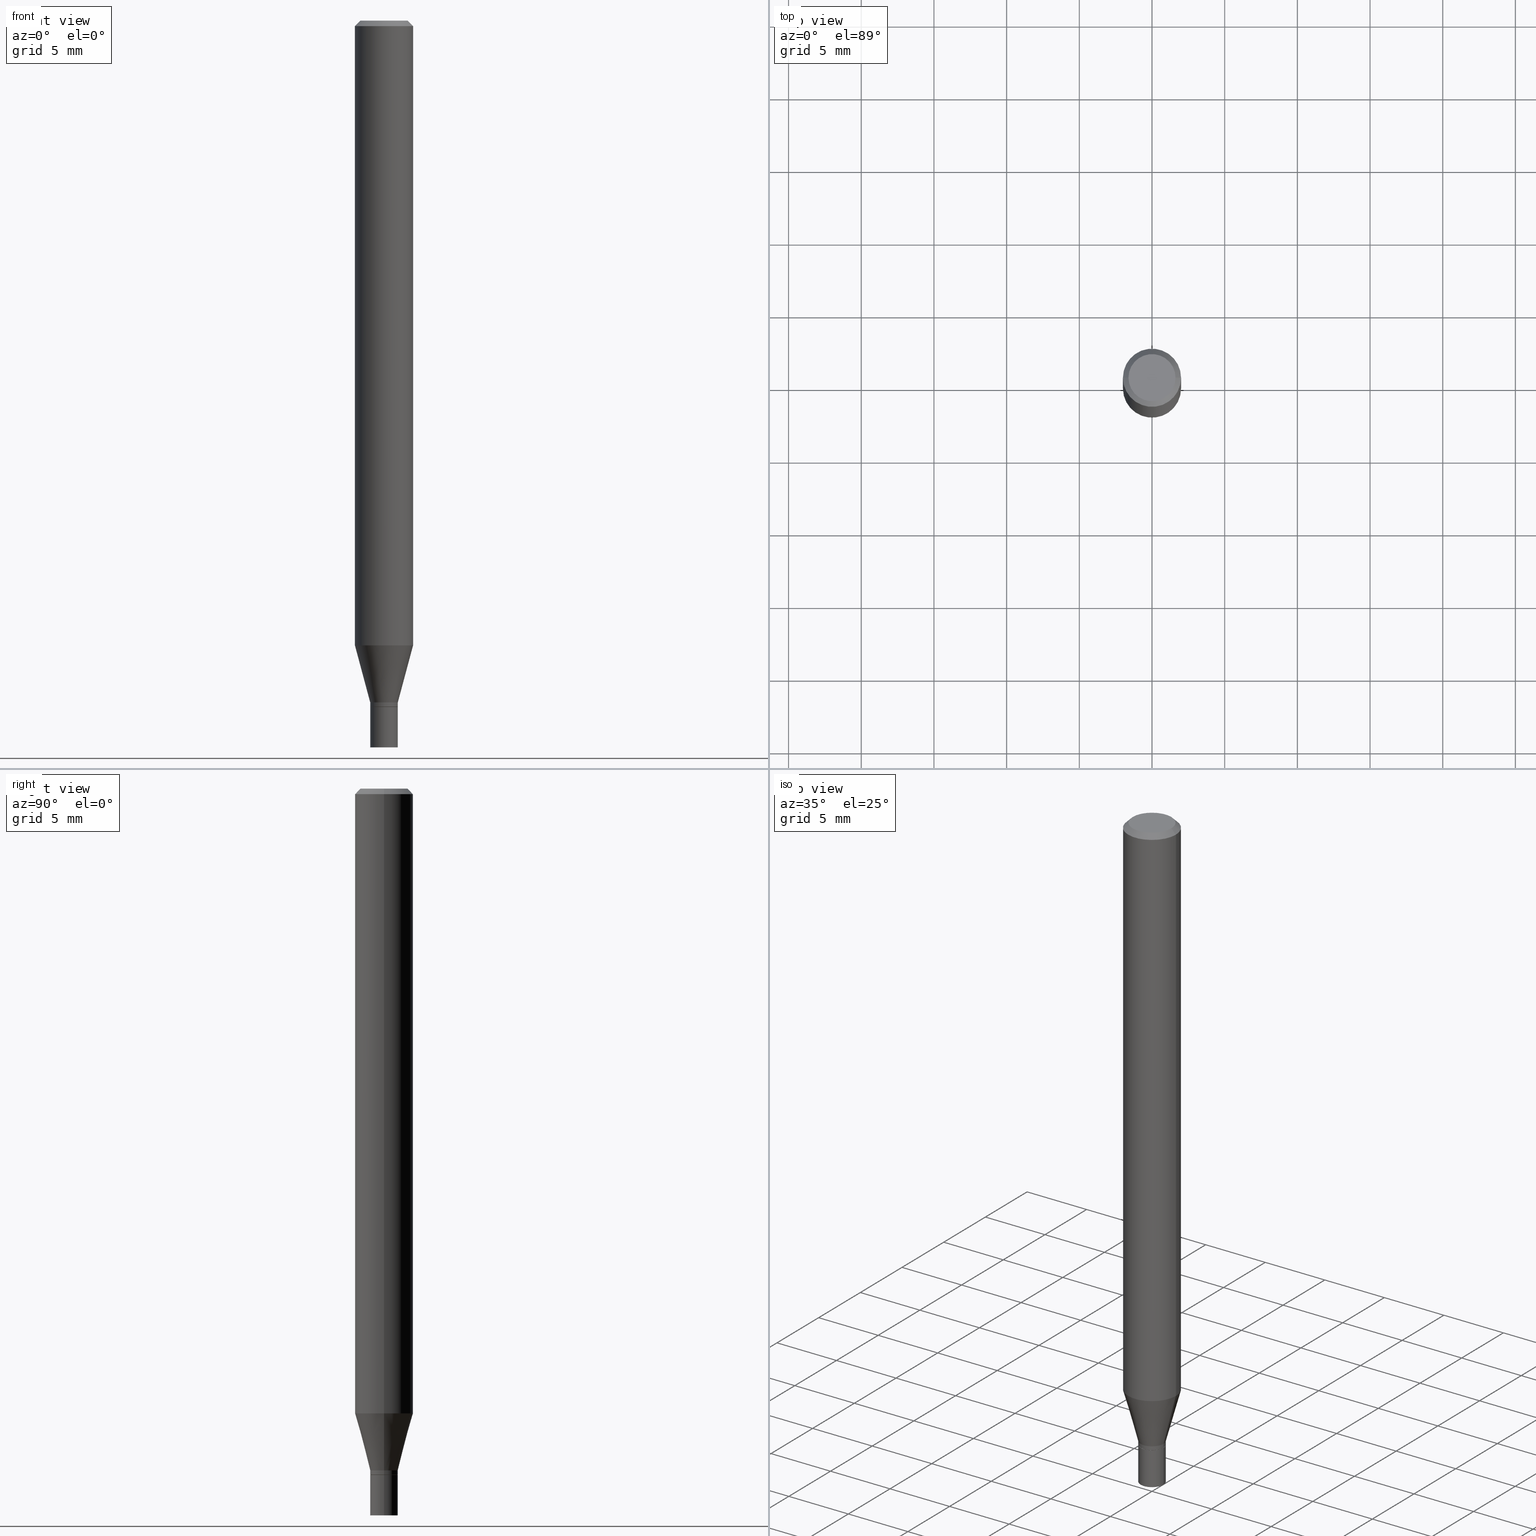
[diagram: canonical four-view strip — front | top / right | iso, engineering-drawing reading convention]
A machine part, canonical four-view strip (front | top / right | iso — engineering-drawing reading convention). The complete STEP part file that produces these views, byte-faithful:
ISO-10303-21;
HEADER;
FILE_DESCRIPTION (( 'STEP AP203' ),
    '1' );
FILE_NAME ('01870.STEP',
    '2024-03-20T02:13:11',
    ( '' ),
    ( '' ),
    'SwSTEP 2.0',
    'SolidWorks 2023',
    '' );
FILE_SCHEMA (( 'CONFIG_CONTROL_DESIGN' ));
ENDSEC;

DATA;
#1 = ORIENTED_EDGE ( 'NONE', *, *, #22, .F. ) ;
#2 = AXIS2_PLACEMENT_3D ( 'NONE', #31, #310, #28 ) ;
#3 = MECHANICAL_CONTEXT ( 'NONE', #285, 'mechanical' ) ;
#4 = DIRECTION ( 'NONE',  ( -2.445468806185136597E-29, 3.491481338843145583E-15, 1.000000000000000000 ) ) ;
#5 = CC_DESIGN_PERSON_AND_ORGANIZATION_ASSIGNMENT ( #386, #54, ( #293 ) ) ;
#6 = LINE ( 'NONE', #220, #442 ) ;
#7 = LOCAL_TIME ( 22, 13, 11.00000000000000000, #401 ) ;
#8 = EDGE_LOOP ( 'NONE', ( #405, #301, #333, #292 ) ) ;
#9 = CARTESIAN_POINT ( 'NONE',  ( -0.06375000000000000111, 4.713499807438222338E-16, -3.508777599725288588E-16 ) ) ;
#10 = EDGE_LOOP ( 'NONE', ( #145, #400, #256, #408 ) ) ;
#11 = DIRECTION ( 'NONE',  ( -2.445468806185136877E-29, 3.491481338843145188E-15, 1.000000000000000000 ) ) ;
#12 = VERTEX_POINT ( 'NONE', #352 ) ;
#13 = LENGTH_MEASURE_WITH_UNIT ( LENGTH_MEASURE( 0.02539999999999999897 ), #81 );
#14 = EDGE_LOOP ( 'NONE', ( #235, #451, #188, #127 ) ) ;
#15 = CARTESIAN_POINT ( 'NONE',  ( 3.668203209277705088E-31, -5.237222008264718399E-17, -0.01499999999999999944 ) ) ;
#16 = ORIENTED_EDGE ( 'NONE', *, *, #171, .T. ) ;
#17 = FACE_OUTER_BOUND ( 'NONE', #131, .T. ) ;
#18 = VECTOR ( 'NONE', #11, 39.37007874015748143 ) ;
#19 = LINE ( 'NONE', #273, #438 ) ;
#20 = LOCAL_TIME ( 22, 13, 11.00000000000000000, #346 ) ;
#21 = DATE_TIME_ROLE ( 'classification_date' ) ;
#22 = EDGE_CURVE ( 'NONE', #91, #448, #425, .T. ) ;
#23 = FACE_OUTER_BOUND ( 'NONE', #303, .T. ) ;
#24 = EDGE_LOOP ( 'NONE', ( #383, #430, #374, #193 ) ) ;
#25 = DIRECTION ( 'NONE',  ( -2.445468806185136597E-29, 3.491481338843145583E-15, 1.000000000000000000 ) ) ;
#26 = CARTESIAN_POINT ( 'NONE',  ( 0.07875000000000000056, -5.926364374071552647E-16, -0.01499999999999999944 ) ) ;
#27 = PERSON_AND_ORGANIZATION ( #198, #260 ) ;
#28 = DIRECTION ( 'NONE',  ( 1.000000000000000000, -6.982962677686266711E-15, 4.876176775795936353E-29 ) ) ;
#29 = AXIS2_PLACEMENT_3D ( 'NONE', #209, #392, #212 ) ;
#30 = APPROVAL ( #445, 'UNSPECIFIED' ) ;
#31 = CARTESIAN_POINT ( 'NONE',  ( 0.000000000000000000, 0.000000000000000000, 0.000000000000000000 ) ) ;
#32 =( CONVERSION_BASED_UNIT ( 'INCH', #13 ) LENGTH_UNIT ( ) NAMED_UNIT ( #244 ) );
#33 = CARTESIAN_POINT ( 'NONE',  ( -0.03740000000000000269, -6.414857410568197524E-15, -1.858300000000000063 ) ) ;
#34 = CARTESIAN_POINT ( 'NONE',  ( 4.544414682533838949E-29, -6.488219771972217332E-15, -1.858300000000000063 ) ) ;
#35 = AXIS2_PLACEMENT_3D ( 'NONE', #161, #232, #387 ) ;
#36 = EDGE_CURVE ( 'NONE', #166, #345, #337, .T. ) ;
#37 = DIRECTION ( 'NONE',  ( 1.000000000000000000, -6.982962677686274599E-15, 0.000000000000000000 ) ) ;
#38 = EDGE_CURVE ( 'NONE', #279, #251, #142, .T. ) ;
#39 = UNCERTAINTY_MEASURE_WITH_UNIT (LENGTH_MEASURE( 1.000000000000000082E-05 ), #32, 'distance_accuracy_value', 'NONE');
#40 = CONICAL_SURFACE ( 'NONE', #182, 0.03739999999999991942, 0.2617993877991501295 ) ;
#41 = LINE ( 'NONE', #441, #208 ) ;
#42 = ORIENTED_EDGE ( 'NONE', *, *, #103, .T. ) ;
#43 = DIRECTION ( 'NONE',  ( -2.445468806185136597E-29, 3.491481338843145583E-15, 1.000000000000000000 ) ) ;
#44 = EDGE_LOOP ( 'NONE', ( #147, #153, #202, #149 ) ) ;
#45 = APPROVAL_ROLE ( '' ) ;
#46 = EDGE_CURVE ( 'NONE', #388, #448, #249, .T. ) ;
#47 = EDGE_CURVE ( 'NONE', #251, #12, #422, .T. ) ;
#48 = ORIENTED_EDGE ( 'NONE', *, *, #257, .F. ) ;
#49 = FACE_OUTER_BOUND ( 'NONE', #8, .T. ) ;
#50 = ORIENTED_EDGE ( 'NONE', *, *, #156, .T. ) ;
#51 = DIRECTION ( 'NONE',  ( -2.445468806185136597E-29, 3.491481338843145583E-15, 1.000000000000000000 ) ) ;
#52 = CC_DESIGN_PERSON_AND_ORGANIZATION_ASSIGNMENT ( #205, #228, ( #359 ) ) ;
#53 = CARTESIAN_POINT ( 'NONE',  ( -0.03740000000000000269, -6.414857410568197524E-15, -1.968500000000000139 ) ) ;
#54 = PERSON_AND_ORGANIZATION_ROLE ( 'creator' ) ;
#55 = DIRECTION ( 'NONE',  ( 2.438088387897960049E-29, -3.491481338843145188E-15, -1.000000000000000000 ) ) ;
#56 = MANIFOLD_SOLID_BREP ( 'Body-Move/Copy2[2]', #111 ) ;
#57 = CIRCLE ( 'NONE', #240, 0.07875000000000000056 ) ;
#58 = DIRECTION ( 'NONE',  ( -2.445468806185136597E-29, 3.491481338843145583E-15, 1.000000000000000000 ) ) ;
#59 = LOCAL_TIME ( 22, 13, 11.00000000000000000, #311 ) ;
#60 = DIRECTION ( 'NONE',  ( 1.000000000000000000, -6.982962677686265922E-15, 4.852736867747365646E-29 ) ) ;
#61 = FACE_OUTER_BOUND ( 'NONE', #371, .T. ) ;
#62 = APPLICATION_PROTOCOL_DEFINITION ( 'international standard', 'config_control_design', 1994, #285 ) ;
#63 = DIRECTION ( 'NONE',  ( 1.000000000000000000, -6.982962677686261189E-15, 0.000000000000000000 ) ) ;
#64 = CARTESIAN_POINT ( 'NONE',  ( 4.515558150620855448E-29, -6.447020292173869059E-15, -1.846500000000000030 ) ) ;
#65 = DIRECTION ( 'NONE',  ( -0.7071067811865557884, 2.468850131082343835E-15, -0.7071067811865392461 ) ) ;
#66 = DIRECTION ( 'NONE',  ( 1.000000000000000000, -6.982962677686266711E-15, 4.876176775795935793E-29 ) ) ;
#67 = MANIFOLD_SOLID_BREP ( 'Body-Move/Copy2[1]', #299 ) ;
#68 = APPROVAL_STATUS ( 'not_yet_approved' ) ;
#69 = DIRECTION ( 'NONE',  ( -2.445468806185136597E-29, 3.491481338843145583E-15, 1.000000000000000000 ) ) ;
#70 = ADVANCED_FACE ( 'NONE', ( #61 ), #428, .F. ) ;
#71 = AXIS2_PLACEMENT_3D ( 'NONE', #343, #25, #315 ) ;
#72 = ORIENTED_EDGE ( 'NONE', *, *, #36, .T. ) ;
#73 = ORIENTED_EDGE ( 'NONE', *, *, #47, .T. ) ;
#74 = CONICAL_SURFACE ( 'NONE', #71, 0.03739999999999991942, 0.2617993877991501295 ) ;
#75 = DIRECTION ( 'NONE',  ( 1.000000000000000000, -6.982962677686265922E-15, 4.876176775795935232E-29 ) ) ;
#76 = VERTEX_POINT ( 'NONE', #316 ) ;
#77 = CARTESIAN_POINT ( 'NONE',  ( 0.03740000000000000269, -2.611628041454664002E-16, 1.823690114147680082E-30 ) ) ;
#78 = EDGE_LOOP ( 'NONE', ( #419, #16, #335, #227 ) ) ;
#79 = EDGE_CURVE ( 'NONE', #444, #229, #206, .T. ) ;
#80 = DATE_AND_TIME ( #298, #20 ) ;
#81 =( LENGTH_UNIT ( ) NAMED_UNIT ( * ) SI_UNIT ( $, .METRE. ) );
#82 = ORIENTED_EDGE ( 'NONE', *, *, #436, .F. ) ;
#83 = DIRECTION ( 'NONE',  ( -2.445468806185136597E-29, 3.491481338843145583E-15, 1.000000000000000000 ) ) ;
#84 = CIRCLE ( 'NONE', #29, 0.07875000000000000056 ) ;
#85 = AXIS2_PLACEMENT_3D ( 'NONE', #270, #384, #132 ) ;
#86 = CC_DESIGN_APPROVAL ( #30, ( #293 ) ) ;
#87 = VERTEX_POINT ( 'NONE', #53 ) ;
#88 = APPROVAL_ROLE ( '' ) ;
#89 = CYLINDRICAL_SURFACE ( 'NONE', #372, 0.03740000000000000269 ) ;
#90 = CC_DESIGN_PERSON_AND_ORGANIZATION_ASSIGNMENT ( #366, #395, ( #201 ) ) ;
#91 = VERTEX_POINT ( 'NONE', #460 ) ;
#92 = PERSON_AND_ORGANIZATION ( #198, #260 ) ;
#93 = DIRECTION ( 'NONE',  ( -2.445468806185136597E-29, 3.491481338843145583E-15, 1.000000000000000000 ) ) ;
#94 = DIRECTION ( 'NONE',  ( 1.000000000000000000, -6.982962677686266711E-15, 4.876176775795935793E-29 ) ) ;
#95 = AXIS2_PLACEMENT_3D ( 'NONE', #133, #175, #172 ) ;
#96 = CARTESIAN_POINT ( 'NONE',  ( 4.544414682533838949E-29, -6.488219771972217332E-15, -1.858300000000000063 ) ) ;
#97 = CC_DESIGN_SECURITY_CLASSIFICATION ( #359, ( #293 ) ) ;
#98 = CARTESIAN_POINT ( 'NONE',  ( 0.07875000000000000056, -5.499083108677934443E-16, 3.839989210939299016E-30 ) ) ;
#99 = ORIENTED_EDGE ( 'NONE', *, *, #156, .F. ) ;
#100 = APPLICATION_PROTOCOL_DEFINITION ( 'international standard', 'config_control_design', 1994, #115 ) ;
#101 = DIRECTION ( 'NONE',  ( 1.000000000000000000, -6.982962677686265922E-15, 0.000000000000000000 ) ) ;
#102 = DATE_AND_TIME ( #431, #223 ) ;
#103 = EDGE_CURVE ( 'NONE', #342, #448, #204, .T. ) ;
#104 = DIRECTION ( 'NONE',  ( 1.000000000000000000, -6.982962677686266711E-15, 4.876176775795936353E-29 ) ) ;
#105 = DATE_TIME_ROLE ( 'creation_date' ) ;
#106 = LINE ( 'NONE', #261, #381 ) ;
#107 = EDGE_CURVE ( 'NONE', #76, #91, #19, .T. ) ;
#108 = DESIGN_CONTEXT ( 'detailed design', #115, 'design' ) ;
#109 = CARTESIAN_POINT ( 'NONE',  ( 0.000000000000000000, 0.000000000000000000, 0.000000000000000000 ) ) ;
#110 = ORIENTED_EDGE ( 'NONE', *, *, #307, .F. ) ;
#111 = CLOSED_SHELL ( 'NONE', ( #275, #452, #344, #318, #365, #304, #356, #429, #323, #70, #432, #128 ) ) ;
#112 = EDGE_CURVE ( 'NONE', #76, #388, #117, .T. ) ;
#113 = CIRCLE ( 'NONE', #95, 0.06375000000000000111 ) ;
#114 = EDGE_CURVE ( 'NONE', #388, #76, #84, .T. ) ;
#115 = APPLICATION_CONTEXT ( 'configuration controlled 3d designs of mechanical parts and assemblies' ) ;
#116 = EDGE_LOOP ( 'NONE', ( #99, #418, #73, #393 ) ) ;
#117 = CIRCLE ( 'NONE', #379, 0.07875000000000000056 ) ;
#118 = CIRCLE ( 'NONE', #164, 0.03739999999999992636 ) ;
#119 = DIRECTION ( 'NONE',  ( 1.000000000000000000, -6.982962677686264344E-15, 0.000000000000000000 ) ) ;
#120 = CC_DESIGN_APPROVAL ( #294, ( #201 ) ) ;
#121 = ORIENTED_EDGE ( 'NONE', *, *, #421, .F. ) ;
#122 = APPROVAL_DATE_TIME ( #80, #30 ) ;
#123 = DIRECTION ( 'NONE',  ( 2.438088387897960049E-29, -3.491481338843145188E-15, -1.000000000000000000 ) ) ;
#124 = VERTEX_POINT ( 'NONE', #354 ) ;
#125 = DATE_AND_TIME ( #349, #286 ) ;
#126 = DIRECTION ( 'NONE',  ( -1.000000000000000000, 6.982962677686265922E-15, -4.876176775795935793E-29 ) ) ;
#127 = ORIENTED_EDGE ( 'NONE', *, *, #36, .F. ) ;
#128 = ADVANCED_FACE ( 'NONE', ( #215 ), #360, .T. ) ;
#129 = DIRECTION ( 'NONE',  ( 2.445468806185136597E-29, -3.491481338843145583E-15, -1.000000000000000000 ) ) ;
#130 = AXIS2_PLACEMENT_3D ( 'NONE', #420, #129, #351 ) ;
#131 = EDGE_LOOP ( 'NONE', ( #306, #50, #258, #233 ) ) ;
#132 = DIRECTION ( 'NONE',  ( 1.000000000000000000, -6.982962677686261189E-15, 0.000000000000000000 ) ) ;
#133 = CARTESIAN_POINT ( 'NONE',  ( 8.580606167969272650E-45, -1.225083151159157695E-30, -3.508777599725256540E-16 ) ) ;
#134 = FACE_OUTER_BOUND ( 'NONE', #454, .T. ) ;
#135 = CARTESIAN_POINT ( 'NONE',  ( 3.668203209277705088E-31, -5.237222008264718399E-17, -0.01499999999999999944 ) ) ;
#136 = CIRCLE ( 'NONE', #196, 0.03739999999999992636 ) ;
#137 = CARTESIAN_POINT ( 'NONE',  ( 0.000000000000000000, 0.000000000000000000, 0.000000000000000000 ) ) ;
#138 = ORIENTED_EDGE ( 'NONE', *, *, #281, .F. ) ;
#139 = DIRECTION ( 'NONE',  ( -2.445468806185136597E-29, 3.491481338843145583E-15, 1.000000000000000000 ) ) ;
#140 = EDGE_CURVE ( 'NONE', #183, #342, #113, .T. ) ;
#141 = CARTESIAN_POINT ( 'NONE',  ( 4.813905344975441835E-29, -6.872981015512731707E-15, -1.968500000000000139 ) ) ;
#142 = CIRCLE ( 'NONE', #369, 0.03690000000000000224 ) ;
#143 = DIRECTION ( 'NONE',  ( -0.7071067811865656694, 7.493145998870420424E-15, 0.7071067811865294761 ) ) ;
#144 = FACE_OUTER_BOUND ( 'NONE', #10, .T. ) ;
#145 = ORIENTED_EDGE ( 'NONE', *, *, #114, .T. ) ;
#146 = ADVANCED_FACE ( 'NONE', ( #319 ), #243, .T. ) ;
#147 = ORIENTED_EDGE ( 'NONE', *, *, #150, .F. ) ;
#148 = PRODUCT_DEFINITION_SHAPE ( 'NONE', 'NONE',  #201 ) ;
#149 = ORIENTED_EDGE ( 'NONE', *, *, #112, .F. ) ;
#150 = EDGE_CURVE ( 'NONE', #229, #76, #300, .T. ) ;
#151 = APPROVAL ( #377, 'UNSPECIFIED' ) ;
#152 = CARTESIAN_POINT ( 'NONE',  ( -0.03739999999999991942, -6.181277308999592458E-15, -1.846500000000000030 ) ) ;
#153 = ORIENTED_EDGE ( 'NONE', *, *, #328, .T. ) ;
#154 = CIRCLE ( 'NONE', #174, 0.03690000000000000224 ) ;
#155 = LINE ( 'NONE', #409, #367 ) ;
#156 = EDGE_CURVE ( 'NONE', #279, #124, #218, .T. ) ;
#157 = ORIENTED_EDGE ( 'NONE', *, *, #397, .T. ) ;
#158 = CARTESIAN_POINT ( 'NONE',  ( 4.515558150620855448E-29, -6.447020292173869059E-15, -1.846500000000000030 ) ) ;
#159 = ORIENTED_EDGE ( 'NONE', *, *, #79, .F. ) ;
#160 = DATE_AND_TIME ( #194, #59 ) ;
#161 = CARTESIAN_POINT ( 'NONE',  ( 0.000000000000000000, 0.000000000000000000, 0.000000000000000000 ) ) ;
#162 = ORIENTED_EDGE ( 'NONE', *, *, #140, .T. ) ;
#163 = CARTESIAN_POINT ( 'NONE',  ( 0.03740000000000000269, -6.749382576117683733E-15, -1.858300000000000063 ) ) ;
#164 = AXIS2_PLACEMENT_3D ( 'NONE', #296, #334, #119 ) ;
#165 =( GEOMETRIC_REPRESENTATION_CONTEXT ( 3 ) GLOBAL_UNCERTAINTY_ASSIGNED_CONTEXT ( ( #39 ) ) GLOBAL_UNIT_ASSIGNED_CONTEXT ( ( #32, #242, #355 ) ) REPRESENTATION_CONTEXT ( 'NONE', 'WORKASPACE' ) );
#166 = VERTEX_POINT ( 'NONE', #33 ) ;
#167 = PERSON_AND_ORGANIZATION ( #198, #260 ) ;
#168 = CARTESIAN_POINT ( 'NONE',  ( 0.07875000000000000056, -6.458122152269187303E-15, -1.692179699107027258 ) ) ;
#169 = DIRECTION ( 'NONE',  ( 1.000000000000000000, -6.982962677686274599E-15, 0.000000000000000000 ) ) ;
#170 = DIRECTION ( 'NONE',  ( -2.445468806185136597E-29, 3.491481338843145583E-15, 1.000000000000000000 ) ) ;
#171 = EDGE_CURVE ( 'NONE', #124, #12, #118, .T. ) ;
#172 = DIRECTION ( 'NONE',  ( 1.000000000000000000, -6.982962677686265922E-15, 4.852736867747365646E-29 ) ) ;
#173 = VECTOR ( 'NONE', #245, 39.37007874015748143 ) ;
#174 = AXIS2_PLACEMENT_3D ( 'NONE', #34, #433, #398 ) ;
#175 = DIRECTION ( 'NONE',  ( -2.445468806185136597E-29, 3.491481338843145583E-15, 1.000000000000000000 ) ) ;
#176 = ADVANCED_BREP_SHAPE_REPRESENTATION ( '01870', ( #67, #56, #390 ), #165 ) ;
#177 = CARTESIAN_POINT ( 'NONE',  ( 4.138172668625985429E-29, -5.908213841401393958E-15, -1.692179699107027258 ) ) ;
#178 = EDGE_CURVE ( 'NONE', #413, #345, #185, .T. ) ;
#179 = CARTESIAN_POINT ( 'NONE',  ( 0.000000000000000000, 0.000000000000000000, 0.000000000000000000 ) ) ;
#180 = APPROVAL_ROLE ( '' ) ;
#181 = DIRECTION ( 'NONE',  ( -2.445468806185136877E-29, 3.491481338843145188E-15, 1.000000000000000000 ) ) ;
#182 = AXIS2_PLACEMENT_3D ( 'NONE', #399, #4, #252 ) ;
#183 = VERTEX_POINT ( 'NONE', #9 ) ;
#184 = APPROVAL_PERSON_ORGANIZATION ( #284, #294, #180 ) ;
#185 = LINE ( 'NONE', #77, #18 ) ;
#186 = EDGE_CURVE ( 'NONE', #124, #229, #155, .T. ) ;
#187 = CIRCLE ( 'NONE', #416, 0.03740000000000000269 ) ;
#188 = ORIENTED_EDGE ( 'NONE', *, *, #178, .T. ) ;
#189 = CARTESIAN_POINT ( 'NONE',  ( -0.07875000000000000056, 4.975360907851462665E-16, -0.01499999999999999944 ) ) ;
#190 = ORIENTED_EDGE ( 'NONE', *, *, #231, .F. ) ;
#191 = EDGE_CURVE ( 'NONE', #87, #166, #106, .T. ) ;
#192 = DIRECTION ( 'NONE',  ( -2.445468806185136597E-29, 3.491481338843145583E-15, 1.000000000000000000 ) ) ;
#193 = ORIENTED_EDGE ( 'NONE', *, *, #225, .F. ) ;
#194 = CALENDAR_DATE ( 2024, 19, 3 ) ;
#195 = VECTOR ( 'NONE', #283, 39.37007874015748143 ) ;
#196 = AXIS2_PLACEMENT_3D ( 'NONE', #302, #170, #458 ) ;
#197 = DIRECTION ( 'NONE',  ( -2.445468806185136597E-29, 3.491481338843145583E-15, 1.000000000000000000 ) ) ;
#198 = PERSON ( 'UNSPECIFIED', 'UNSPECIFIED', 'UNSPECIFIED', ('UNSPECIFIED'), ('UNSPECIFIED'), ('UNSPECIFIED') ) ;
#199 = ORIENTED_EDGE ( 'NONE', *, *, #38, .F. ) ;
#200 = CARTESIAN_POINT ( 'NONE',  ( 4.848906058769445083E-29, -6.822858001242805551E-15, -1.968500000000000139 ) ) ;
#201 = PRODUCT_DEFINITION ( 'UNKNOWN', '', #293, #108 ) ;
#202 = ORIENTED_EDGE ( 'NONE', *, *, #225, .T. ) ;
#203 = CARTESIAN_POINT ( 'NONE',  ( 0.07875000000000000056, -6.022805309504406221E-16, -0.01499999999999999944 ) ) ;
#204 = LINE ( 'NONE', #26, #463 ) ;
#205 = PERSON_AND_ORGANIZATION ( #198, #260 ) ;
#206 = CIRCLE ( 'NONE', #325, 0.03739999999999991942 ) ;
#207 = DIRECTION ( 'NONE',  ( -1.000000000000000000, 6.982962677686265922E-15, 0.000000000000000000 ) ) ;
#208 = VECTOR ( 'NONE', #329, 39.37007874015747433 ) ;
#209 = CARTESIAN_POINT ( 'NONE',  ( 4.138172668625985429E-29, -5.908213841401393958E-15, -1.692179699107027258 ) ) ;
#210 = ADVANCED_FACE ( 'NONE', ( #289 ), #287, .F. ) ;
#211 = DIRECTION ( 'NONE',  ( 2.445468806185136597E-29, -3.491481338843145583E-15, -1.000000000000000000 ) ) ;
#212 = DIRECTION ( 'NONE',  ( 1.000000000000000000, -6.982962677686261977E-15, 0.000000000000000000 ) ) ;
#213 = CARTESIAN_POINT ( 'NONE',  ( 0.03690000000000000224, -6.745891094778840725E-15, -1.858300000000000063 ) ) ;
#214 = AXIS2_PLACEMENT_3D ( 'NONE', #378, #417, #60 ) ;
#215 = FACE_OUTER_BOUND ( 'NONE', #78, .T. ) ;
#216 = FACE_OUTER_BOUND ( 'NONE', #268, .T. ) ;
#217 = CARTESIAN_POINT ( 'NONE',  ( 0.000000000000000000, 0.000000000000000000, 0.000000000000000000 ) ) ;
#218 = LINE ( 'NONE', #446, #326 ) ;
#219 = CALENDAR_DATE ( 2024, 19, 3 ) ;
#220 = CARTESIAN_POINT ( 'NONE',  ( 0.03739999999999991942, -2.611628041454658086E-16, 1.823690114147676228E-30 ) ) ;
#221 = AXIS2_PLACEMENT_3D ( 'NONE', #158, #197, #353 ) ;
#222 = CONICAL_SURFACE ( 'NONE', #350, 0.03690000000000000224, 0.7853981633974739252 ) ;
#223 = LOCAL_TIME ( 22, 13, 11.00000000000000000, #361 ) ;
#224 = FACE_OUTER_BOUND ( 'NONE', #380, .T. ) ;
#225 = EDGE_CURVE ( 'NONE', #444, #388, #41, .T. ) ;
#226 = CARTESIAN_POINT ( 'NONE',  ( 0.03690000000000000224, -6.745891094778840725E-15, -1.858300000000000063 ) ) ;
#227 = ORIENTED_EDGE ( 'NONE', *, *, #328, .F. ) ;
#228 = PERSON_AND_ORGANIZATION_ROLE ( 'classification_officer' ) ;
#229 = VERTEX_POINT ( 'NONE', #288 ) ;
#230 = AXIS2_PLACEMENT_3D ( 'NONE', #141, #192, #250 ) ;
#231 = EDGE_CURVE ( 'NONE', #251, #279, #154, .T. ) ;
#232 = DIRECTION ( 'NONE',  ( -2.445468806185136597E-29, 3.491481338843145583E-15, 1.000000000000000000 ) ) ;
#233 = ORIENTED_EDGE ( 'NONE', *, *, #47, .F. ) ;
#234 = CARTESIAN_POINT ( 'NONE',  ( 0.000000000000000000, 0.000000000000000000, 0.000000000000000000 ) ) ;
#235 = ORIENTED_EDGE ( 'NONE', *, *, #191, .F. ) ;
#236 = DIRECTION ( 'NONE',  ( 1.000000000000000000, -6.982962677686265922E-15, 0.000000000000000000 ) ) ;
#237 = CC_DESIGN_DATE_AND_TIME_ASSIGNMENT ( #125, #21, ( #359 ) ) ;
#238 = DIRECTION ( 'NONE',  ( -2.445468806185136597E-29, 3.491481338843145583E-15, 1.000000000000000000 ) ) ;
#239 = FACE_OUTER_BOUND ( 'NONE', #410, .T. ) ;
#240 = AXIS2_PLACEMENT_3D ( 'NONE', #15, #83, #236 ) ;
#241 = DIRECTION ( 'NONE',  ( -2.445468806185136877E-29, 3.491481338843145188E-15, 1.000000000000000000 ) ) ;
#242 =( NAMED_UNIT ( * ) PLANE_ANGLE_UNIT ( ) SI_UNIT ( $, .RADIAN. ) );
#243 = CYLINDRICAL_SURFACE ( 'NONE', #439, 0.03740000000000000269 ) ;
#244 = DIMENSIONAL_EXPONENTS ( 1.000000000000000000, 0.000000000000000000, 0.000000000000000000, 0.000000000000000000, 0.000000000000000000, 0.000000000000000000, 0.000000000000000000 ) ;
#245 = DIRECTION ( 'NONE',  ( 0.7071067811865656694, -2.468850131082446387E-15, 0.7071067811865294761 ) ) ;
#246 = APPROVAL_DATE_TIME ( #427, #294 ) ;
#247 = CC_DESIGN_DATE_AND_TIME_ASSIGNMENT ( #102, #105, ( #201 ) ) ;
#248 = CIRCLE ( 'NONE', #230, 0.03740000000000000269 ) ;
#249 = LINE ( 'NONE', #98, #195 ) ;
#250 = DIRECTION ( 'NONE',  ( 1.000000000000000000, -6.982962677686274599E-15, 0.000000000000000000 ) ) ;
#251 = VERTEX_POINT ( 'NONE', #226 ) ;
#252 = DIRECTION ( 'NONE',  ( 1.000000000000000000, -6.982962677686265133E-15, 0.000000000000000000 ) ) ;
#253 = DIRECTION ( 'NONE',  ( -2.445468806185136597E-29, 3.491481338843145583E-15, 1.000000000000000000 ) ) ;
#254 = PRODUCT ( '01870', '01870', '', ( #3 ) ) ;
#255 = VECTOR ( 'NONE', #434, 39.37007874015747433 ) ;
#256 = ORIENTED_EDGE ( 'NONE', *, *, #331, .F. ) ;
#257 = EDGE_CURVE ( 'NONE', #183, #91, #375, .T. ) ;
#258 = ORIENTED_EDGE ( 'NONE', *, *, #397, .F. ) ;
#259 = VECTOR ( 'NONE', #65, 39.37007874015748143 ) ;
#260 = ORGANIZATION ( 'UNSPECIFIED', 'UNSPECIFIED', '' ) ;
#261 = CARTESIAN_POINT ( 'NONE',  ( -0.03740000000000000269, 2.657429831742774886E-16, -1.839681723755335040E-30 ) ) ;
#262 = ORIENTED_EDGE ( 'NONE', *, *, #178, .F. ) ;
#263 = PERSON_AND_ORGANIZATION ( #198, #260 ) ;
#264 = FACE_OUTER_BOUND ( 'NONE', #116, .T. ) ;
#265 = ORIENTED_EDGE ( 'NONE', *, *, #436, .T. ) ;
#266 = SECURITY_CLASSIFICATION_LEVEL ( 'unclassified' ) ;
#267 = CYLINDRICAL_SURFACE ( 'NONE', #35, 0.07875000000000000056 ) ;
#268 = EDGE_LOOP ( 'NONE', ( #157, #295, #159, #440 ) ) ;
#269 = AXIS2_PLACEMENT_3D ( 'NONE', #461, #347, #382 ) ;
#270 = CARTESIAN_POINT ( 'NONE',  ( 4.544414682533838949E-29, -6.488219771972217332E-15, -1.858300000000000063 ) ) ;
#271 = ORIENTED_EDGE ( 'NONE', *, *, #46, .T. ) ;
#272 = DIRECTION ( 'NONE',  ( -2.445468806185136597E-29, 3.491481338843145583E-15, 1.000000000000000000 ) ) ;
#273 = CARTESIAN_POINT ( 'NONE',  ( -0.07875000000000000056, 5.595524044110789003E-16, -3.873661383575737792E-30 ) ) ;
#274 = CARTESIAN_POINT ( 'NONE',  ( 0.06375000000000000111, -5.149965923825457196E-16, -3.508777599725223014E-16 ) ) ;
#275 = ADVANCED_FACE ( 'NONE', ( #216 ), #362, .T. ) ;
#276 = DIRECTION ( 'NONE',  ( 0.7071067811865557884, -7.319954787623282867E-15, -0.7071067811865392461 ) ) ;
#277 = CONICAL_SURFACE ( 'NONE', #308, 0.07875000000000000056, 0.7853981633974600474 ) ;
#278 = APPROVAL_PERSON_ORGANIZATION ( #167, #151, #45 ) ;
#279 = VERTEX_POINT ( 'NONE', #466 ) ;
#280 = CARTESIAN_POINT ( 'NONE',  ( 4.544414682533838949E-29, -6.488219771972217332E-15, -1.858300000000000063 ) ) ;
#281 = EDGE_CURVE ( 'NONE', #413, #87, #248, .T. ) ;
#282 = PERSON_AND_ORGANIZATION_ROLE ( 'design_owner' ) ;
#283 = DIRECTION ( 'NONE',  ( -2.445468806185136877E-29, 3.491481338843145188E-15, 1.000000000000000000 ) ) ;
#284 = PERSON_AND_ORGANIZATION ( #198, #260 ) ;
#285 = APPLICATION_CONTEXT ( 'configuration controlled 3d designs of mechanical parts and assemblies' ) ;
#286 = LOCAL_TIME ( 22, 13, 11.00000000000000000, #449 ) ;
#287 = PLANE ( 'NONE',  #389 ) ;
#288 = CARTESIAN_POINT ( 'NONE',  ( -0.03739999999999991942, -5.764969372994953413E-15, -1.846500000000000030 ) ) ;
#289 = FACE_OUTER_BOUND ( 'NONE', #297, .T. ) ;
#290 = AXIS2_PLACEMENT_3D ( 'NONE', #96, #314, #426 ) ;
#291 = CONICAL_SURFACE ( 'NONE', #85, 0.03690000000000000224, 0.7853981633974739252 ) ;
#292 = ORIENTED_EDGE ( 'NONE', *, *, #22, .T. ) ;
#293 = PRODUCT_DEFINITION_FORMATION_WITH_SPECIFIED_SOURCE ( 'ANY', '', #254, .NOT_KNOWN. ) ;
#294 = APPROVAL ( #68, 'UNSPECIFIED' ) ;
#295 = ORIENTED_EDGE ( 'NONE', *, *, #186, .T. ) ;
#296 = CARTESIAN_POINT ( 'NONE',  ( 4.543191948130747268E-29, -6.486474031302795829E-15, -1.857800000000000118 ) ) ;
#297 = EDGE_LOOP ( 'NONE', ( #338, #72 ) ) ;
#298 = CALENDAR_DATE ( 2024, 19, 3 ) ;
#299 = CLOSED_SHELL ( 'NONE', ( #447, #370, #146, #210 ) ) ;
#300 = LINE ( 'NONE', #152, #255 ) ;
#301 = ORIENTED_EDGE ( 'NONE', *, *, #140, .F. ) ;
#302 = CARTESIAN_POINT ( 'NONE',  ( 4.543191948130747268E-29, -6.486474031302795829E-15, -1.857800000000000118 ) ) ;
#303 = EDGE_LOOP ( 'NONE', ( #415, #385, #271, #1 ) ) ;
#304 = ADVANCED_FACE ( 'NONE', ( #404 ), #40, .T. ) ;
#305 = PLANE ( 'NONE',  #317 ) ;
#306 = ORIENTED_EDGE ( 'NONE', *, *, #231, .T. ) ;
#307 = EDGE_CURVE ( 'NONE', #345, #166, #187, .T. ) ;
#308 = AXIS2_PLACEMENT_3D ( 'NONE', #391, #211, #207 ) ;
#309 = CARTESIAN_POINT ( 'NONE',  ( 0.03739999999999991942, -6.708183096319334671E-15, -1.846500000000000030 ) ) ;
#310 = DIRECTION ( 'NONE',  ( -2.445468806185136597E-29, 3.491481338843145583E-15, 1.000000000000000000 ) ) ;
#311 = COORDINATED_UNIVERSAL_TIME_OFFSET ( 5, 0, .BEHIND. ) ;
#312 = EDGE_CURVE ( 'NONE', #12, #444, #6, .T. ) ;
#313 = DIRECTION ( 'NONE',  ( -2.438088387897960049E-29, 3.491481338843145188E-15, 1.000000000000000000 ) ) ;
#314 = DIRECTION ( 'NONE',  ( -2.438088387897960049E-29, 3.491481338843145188E-15, 1.000000000000000000 ) ) ;
#315 = DIRECTION ( 'NONE',  ( 1.000000000000000000, -6.982962677686265133E-15, 0.000000000000000000 ) ) ;
#316 = CARTESIAN_POINT ( 'NONE',  ( -0.07875000000000000056, -5.348661436990315945E-15, -1.692179699107027258 ) ) ;
#317 = AXIS2_PLACEMENT_3D ( 'NONE', #200, #313, #450 ) ;
#318 = ADVANCED_FACE ( 'NONE', ( #144 ), #435, .T. ) ;
#319 = FACE_OUTER_BOUND ( 'NONE', #14, .T. ) ;
#320 = DIRECTION ( 'NONE',  ( 1.000000000000000000, 0.000000000000000000, 0.000000000000000000 ) ) ;
#321 = DIRECTION ( 'NONE',  ( -2.445468806185136597E-29, 3.491481338843145583E-15, 1.000000000000000000 ) ) ;
#322 = CARTESIAN_POINT ( 'NONE',  ( 2.611628041455117597E-16, 0.03739999999999351482, -1.858300000000000063 ) ) ;
#323 = ADVANCED_FACE ( 'NONE', ( #224 ), #336, .F. ) ;
#324 = DIRECTION ( 'NONE',  ( 0.000000000000000000, 0.000000000000000000, 1.000000000000000000 ) ) ;
#325 = AXIS2_PLACEMENT_3D ( 'NONE', #64, #238, #357 ) ;
#326 = VECTOR ( 'NONE', #143, 39.37007874015748143 ) ;
#327 = DIRECTION ( 'NONE',  ( -2.445468806185136877E-29, 3.491481338843145188E-15, 1.000000000000000000 ) ) ;
#328 = EDGE_CURVE ( 'NONE', #229, #444, #396, .T. ) ;
#329 = DIRECTION ( 'NONE',  ( 0.2588190451025214611, 1.565188264969621573E-15, 0.9659258262890682012 ) ) ;
#330 = CONICAL_SURFACE ( 'NONE', #130, 0.07875000000000000056, 0.7853981633974600474 ) ;
#331 = EDGE_CURVE ( 'NONE', #448, #91, #57, .T. ) ;
#332 = APPROVAL_PERSON_ORGANIZATION ( #92, #30, #88 ) ;
#333 = ORIENTED_EDGE ( 'NONE', *, *, #257, .T. ) ;
#334 = DIRECTION ( 'NONE',  ( -2.445468806185136597E-29, 3.491481338843145583E-15, 1.000000000000000000 ) ) ;
#335 = ORIENTED_EDGE ( 'NONE', *, *, #312, .T. ) ;
#336 = PLANE ( 'NONE',  #339 ) ;
#337 = CIRCLE ( 'NONE', #403, 0.03740000000000000269 ) ;
#338 = ORIENTED_EDGE ( 'NONE', *, *, #307, .T. ) ;
#339 = AXIS2_PLACEMENT_3D ( 'NONE', #373, #55, #126 ) ;
#340 = APPROVAL_DATE_TIME ( #160, #151 ) ;
#341 = FACE_OUTER_BOUND ( 'NONE', #24, .T. ) ;
#342 = VERTEX_POINT ( 'NONE', #274 ) ;
#343 = CARTESIAN_POINT ( 'NONE',  ( 4.515558150620855448E-29, -6.447020292173869059E-15, -1.846500000000000030 ) ) ;
#344 = ADVANCED_FACE ( 'NONE', ( #239 ), #277, .T. ) ;
#345 = VERTEX_POINT ( 'NONE', #163 ) ;
#346 = COORDINATED_UNIVERSAL_TIME_OFFSET ( 5, 0, .BEHIND. ) ;
#347 = DIRECTION ( 'NONE',  ( -2.445468806185136597E-29, 3.491481338843145583E-15, 1.000000000000000000 ) ) ;
#348 = DIRECTION ( 'NONE',  ( -2.445468806185136597E-29, 3.491481338843145583E-15, 1.000000000000000000 ) ) ;
#349 = CALENDAR_DATE ( 2024, 19, 3 ) ;
#350 = AXIS2_PLACEMENT_3D ( 'NONE', #455, #272, #412 ) ;
#351 = DIRECTION ( 'NONE',  ( -1.000000000000000000, 6.982962677686265922E-15, 0.000000000000000000 ) ) ;
#352 = CARTESIAN_POINT ( 'NONE',  ( 0.03739999999999992636, -6.747636835448261440E-15, -1.857800000000000118 ) ) ;
#353 = DIRECTION ( 'NONE',  ( 1.000000000000000000, -6.982962677686265133E-15, 0.000000000000000000 ) ) ;
#354 = CARTESIAN_POINT ( 'NONE',  ( -0.03739999999999992636, -6.220731048128519228E-15, -1.857800000000000118 ) ) ;
#355 =( NAMED_UNIT ( * ) SI_UNIT ( $, .STERADIAN. ) SOLID_ANGLE_UNIT ( ) );
#356 = ADVANCED_FACE ( 'NONE', ( #23 ), #267, .T. ) ;
#357 = DIRECTION ( 'NONE',  ( 1.000000000000000000, -6.982962677686265133E-15, 0.000000000000000000 ) ) ;
#358 = CIRCLE ( 'NONE', #214, 0.06375000000000000111 ) ;
#359 = SECURITY_CLASSIFICATION ( '', '', #266 ) ;
#360 = CYLINDRICAL_SURFACE ( 'NONE', #2, 0.03739999999999991942 ) ;
#361 = COORDINATED_UNIVERSAL_TIME_OFFSET ( 5, 0, .BEHIND. ) ;
#362 = CYLINDRICAL_SURFACE ( 'NONE', #424, 0.03739999999999991942 ) ;
#363 = PRODUCT_RELATED_PRODUCT_CATEGORY ( 'detail', '', ( #254 ) ) ;
#364 = DIRECTION ( 'NONE',  ( -1.000000000000000000, 6.982962677686265922E-15, -4.876176775795935793E-29 ) ) ;
#365 = ADVANCED_FACE ( 'NONE', ( #341 ), #74, .T. ) ;
#366 = PERSON_AND_ORGANIZATION ( #198, #260 ) ;
#367 = VECTOR ( 'NONE', #327, 39.37007874015748143 ) ;
#368 = DIRECTION ( 'NONE',  ( -2.445468806185136877E-29, 3.491481338843145188E-15, 1.000000000000000000 ) ) ;
#369 = AXIS2_PLACEMENT_3D ( 'NONE', #394, #93, #63 ) ;
#370 = ADVANCED_FACE ( 'NONE', ( #414 ), #305, .F. ) ;
#371 = EDGE_LOOP ( 'NONE', ( #190, #199 ) ) ;
#372 = AXIS2_PLACEMENT_3D ( 'NONE', #234, #51, #94 ) ;
#373 = CARTESIAN_POINT ( 'NONE',  ( 4.451638707024993845E-16, 0.06375000000000000111, -3.980208153375133574E-16 ) ) ;
#374 = ORIENTED_EDGE ( 'NONE', *, *, #114, .F. ) ;
#375 = LINE ( 'NONE', #189, #259 ) ;
#376 = ORIENTED_EDGE ( 'NONE', *, *, #281, .T. ) ;
#377 = APPROVAL_STATUS ( 'not_yet_approved' ) ;
#378 = CARTESIAN_POINT ( 'NONE',  ( 8.580606167969272650E-45, -1.225083151159157695E-30, -3.508777599725256540E-16 ) ) ;
#379 = AXIS2_PLACEMENT_3D ( 'NONE', #177, #58, #456 ) ;
#380 = EDGE_LOOP ( 'NONE', ( #162, #265 ) ) ;
#381 = VECTOR ( 'NONE', #181, 39.37007874015748143 ) ;
#382 = DIRECTION ( 'NONE',  ( 1.000000000000000000, -6.982962677686274599E-15, 0.000000000000000000 ) ) ;
#383 = ORIENTED_EDGE ( 'NONE', *, *, #79, .T. ) ;
#384 = DIRECTION ( 'NONE',  ( -2.445468806185136597E-29, 3.491481338843145583E-15, 1.000000000000000000 ) ) ;
#385 = ORIENTED_EDGE ( 'NONE', *, *, #112, .T. ) ;
#386 = PERSON_AND_ORGANIZATION ( #198, #260 ) ;
#387 = DIRECTION ( 'NONE',  ( 1.000000000000000000, -6.982962677686265922E-15, 4.876176775795935232E-29 ) ) ;
#388 = VERTEX_POINT ( 'NONE', #168 ) ;
#389 = AXIS2_PLACEMENT_3D ( 'NONE', #322, #123, #364 ) ;
#390 = AXIS2_PLACEMENT_3D ( 'NONE', #217, #324, #320 ) ;
#391 = CARTESIAN_POINT ( 'NONE',  ( 3.668203209277705088E-31, -5.237222008264718399E-17, -0.01499999999999999944 ) ) ;
#392 = DIRECTION ( 'NONE',  ( -2.445468806185136597E-29, 3.491481338843145583E-15, 1.000000000000000000 ) ) ;
#393 = ORIENTED_EDGE ( 'NONE', *, *, #171, .F. ) ;
#394 = CARTESIAN_POINT ( 'NONE',  ( 4.544414682533838949E-29, -6.488219771972217332E-15, -1.858300000000000063 ) ) ;
#395 = PERSON_AND_ORGANIZATION_ROLE ( 'creator' ) ;
#396 = CIRCLE ( 'NONE', #221, 0.03739999999999991942 ) ;
#397 = EDGE_CURVE ( 'NONE', #12, #124, #136, .T. ) ;
#398 = DIRECTION ( 'NONE',  ( 1.000000000000000000, -6.982962677686261189E-15, 0.000000000000000000 ) ) ;
#399 = CARTESIAN_POINT ( 'NONE',  ( 4.515558150620855448E-29, -6.447020292173869059E-15, -1.846500000000000030 ) ) ;
#400 = ORIENTED_EDGE ( 'NONE', *, *, #107, .T. ) ;
#401 = COORDINATED_UNIVERSAL_TIME_OFFSET ( 5, 0, .BEHIND. ) ;
#402 = CARTESIAN_POINT ( 'NONE',  ( 4.544414682533838949E-29, -6.488219771972217332E-15, -1.858300000000000063 ) ) ;
#403 = AXIS2_PLACEMENT_3D ( 'NONE', #280, #348, #169 ) ;
#404 = FACE_OUTER_BOUND ( 'NONE', #44, .T. ) ;
#405 = ORIENTED_EDGE ( 'NONE', *, *, #103, .F. ) ;
#406 = AXIS2_PLACEMENT_3D ( 'NONE', #109, #253, #75 ) ;
#407 = CC_DESIGN_PERSON_AND_ORGANIZATION_ASSIGNMENT ( #27, #282, ( #254 ) ) ;
#408 = ORIENTED_EDGE ( 'NONE', *, *, #46, .F. ) ;
#409 = CARTESIAN_POINT ( 'NONE',  ( -0.03739999999999991942, 2.657429831742768970E-16, -1.839681723755330837E-30 ) ) ;
#410 = EDGE_LOOP ( 'NONE', ( #82, #42, #465, #48 ) ) ;
#411 = PERSON_AND_ORGANIZATION_ROLE ( 'design_supplier' ) ;
#412 = DIRECTION ( 'NONE',  ( 1.000000000000000000, -6.982962677686261189E-15, 0.000000000000000000 ) ) ;
#413 = VERTEX_POINT ( 'NONE', #453 ) ;
#414 = FACE_OUTER_BOUND ( 'NONE', #437, .T. ) ;
#415 = ORIENTED_EDGE ( 'NONE', *, *, #107, .F. ) ;
#416 = AXIS2_PLACEMENT_3D ( 'NONE', #402, #69, #37 ) ;
#417 = DIRECTION ( 'NONE',  ( -2.445468806185136597E-29, 3.491481338843145583E-15, 1.000000000000000000 ) ) ;
#418 = ORIENTED_EDGE ( 'NONE', *, *, #38, .T. ) ;
#419 = ORIENTED_EDGE ( 'NONE', *, *, #186, .F. ) ;
#420 = CARTESIAN_POINT ( 'NONE',  ( 3.668203209277705088E-31, -5.237222008264718399E-17, -0.01499999999999999944 ) ) ;
#421 = EDGE_CURVE ( 'NONE', #87, #413, #464, .T. ) ;
#422 = LINE ( 'NONE', #213, #173 ) ;
#423 = AXIS2_PLACEMENT_3D ( 'NONE', #135, #139, #101 ) ;
#424 = AXIS2_PLACEMENT_3D ( 'NONE', #179, #43, #104 ) ;
#425 = CIRCLE ( 'NONE', #423, 0.07875000000000000056 ) ;
#426 = DIRECTION ( 'NONE',  ( 1.000000000000000000, -6.982962677686265922E-15, 4.876176775795935793E-29 ) ) ;
#427 = DATE_AND_TIME ( #219, #7 ) ;
#428 = PLANE ( 'NONE',  #290 ) ;
#429 = ADVANCED_FACE ( 'NONE', ( #49 ), #330, .T. ) ;
#430 = ORIENTED_EDGE ( 'NONE', *, *, #150, .T. ) ;
#431 = CALENDAR_DATE ( 2024, 19, 3 ) ;
#432 = ADVANCED_FACE ( 'NONE', ( #264 ), #291, .T. ) ;
#433 = DIRECTION ( 'NONE',  ( -2.445468806185136597E-29, 3.491481338843145583E-15, 1.000000000000000000 ) ) ;
#434 = DIRECTION ( 'NONE',  ( -0.2588190451025214611, 5.211531920934551042E-15, 0.9659258262890682012 ) ) ;
#435 = CYLINDRICAL_SURFACE ( 'NONE', #406, 0.07875000000000000056 ) ;
#436 = EDGE_CURVE ( 'NONE', #342, #183, #358, .T. ) ;
#437 = EDGE_LOOP ( 'NONE', ( #138, #121 ) ) ;
#438 = VECTOR ( 'NONE', #241, 39.37007874015748143 ) ;
#439 = AXIS2_PLACEMENT_3D ( 'NONE', #137, #321, #66 ) ;
#440 = ORIENTED_EDGE ( 'NONE', *, *, #312, .F. ) ;
#441 = CARTESIAN_POINT ( 'NONE',  ( 0.03739999999999991942, -6.708183096319334671E-15, -1.846500000000000030 ) ) ;
#442 = VECTOR ( 'NONE', #368, 39.37007874015748143 ) ;
#443 = CC_DESIGN_APPROVAL ( #151, ( #359 ) ) ;
#444 = VERTEX_POINT ( 'NONE', #309 ) ;
#445 = APPROVAL_STATUS ( 'not_yet_approved' ) ;
#446 = CARTESIAN_POINT ( 'NONE',  ( -0.03690000000000000224, -6.226029502476740841E-15, -1.858300000000000063 ) ) ;
#447 = ADVANCED_FACE ( 'NONE', ( #134 ), #89, .T. ) ;
#448 = VERTEX_POINT ( 'NONE', #203 ) ;
#449 = COORDINATED_UNIVERSAL_TIME_OFFSET ( 5, 0, .BEHIND. ) ;
#450 = DIRECTION ( 'NONE',  ( 1.000000000000000000, -6.982962677686265922E-15, 4.876176775795935793E-29 ) ) ;
#451 = ORIENTED_EDGE ( 'NONE', *, *, #421, .T. ) ;
#452 = ADVANCED_FACE ( 'NONE', ( #17 ), #222, .T. ) ;
#453 = CARTESIAN_POINT ( 'NONE',  ( 0.03740000000000000269, -7.134143819658198107E-15, -1.968500000000000139 ) ) ;
#454 = EDGE_LOOP ( 'NONE', ( #376, #462, #110, #262 ) ) ;
#455 = CARTESIAN_POINT ( 'NONE',  ( 4.544414682533838949E-29, -6.488219771972217332E-15, -1.858300000000000063 ) ) ;
#456 = DIRECTION ( 'NONE',  ( 1.000000000000000000, -6.982962677686261977E-15, 0.000000000000000000 ) ) ;
#457 = SHAPE_DEFINITION_REPRESENTATION ( #148, #176 ) ;
#458 = DIRECTION ( 'NONE',  ( 1.000000000000000000, -6.982962677686264344E-15, 0.000000000000000000 ) ) ;
#459 = CC_DESIGN_PERSON_AND_ORGANIZATION_ASSIGNMENT ( #263, #411, ( #293 ) ) ;
#460 = CARTESIAN_POINT ( 'NONE',  ( -0.07875000000000000056, -2.420740626330942308E-15, -0.01499999999999999944 ) ) ;
#461 = CARTESIAN_POINT ( 'NONE',  ( 4.813905344975441835E-29, -6.872981015512731707E-15, -1.968500000000000139 ) ) ;
#462 = ORIENTED_EDGE ( 'NONE', *, *, #191, .T. ) ;
#463 = VECTOR ( 'NONE', #276, 39.37007874015748143 ) ;
#464 = CIRCLE ( 'NONE', #269, 0.03740000000000000269 ) ;
#465 = ORIENTED_EDGE ( 'NONE', *, *, #331, .T. ) ;
#466 = CARTESIAN_POINT ( 'NONE',  ( -0.03690000000000000224, -6.223380275302629640E-15, -1.858300000000000063 ) ) ;
ENDSEC;
END-ISO-10303-21;
